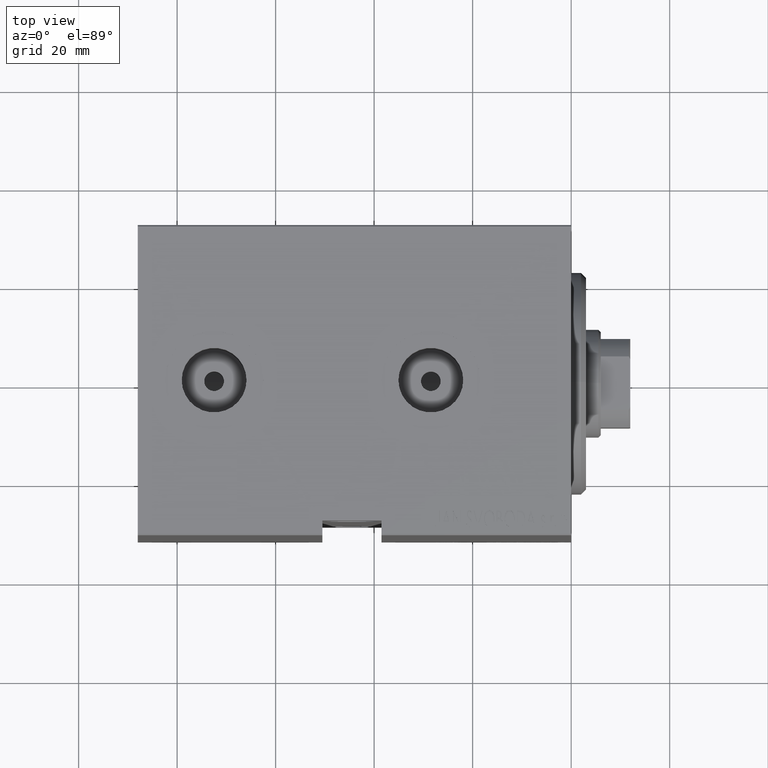
[diagram: clean part render]
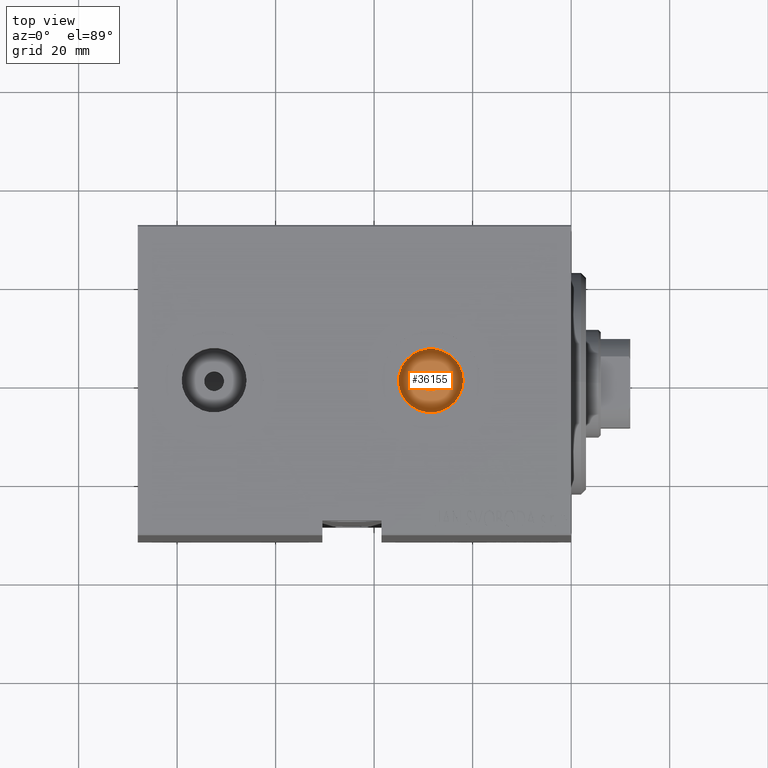
[diagram: same view with one face highlighted and labeled with its STEP entity id]
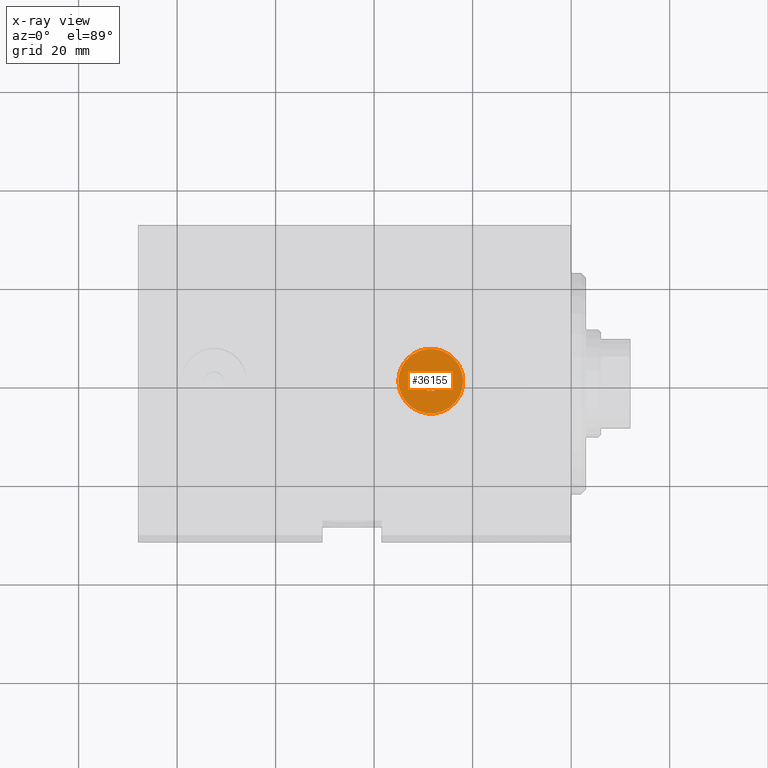
[diagram: x-ray of the same camera — body ghosted, the highlighted face saturated]
A machine part, top view. The second image highlights one B-rep face of the part: STEP entity #36155.
The next image is the same camera in x-ray: the body ghosted, the highlighted face saturated — about 0% of this face is hidden behind the body in this view.
In plain terms, the highlighted planar face has unit normal (0, 0, 1).
Its self-contained STEP definition (entity closure, byte-faithful):
#418 = DIRECTION ( 'NONE',  ( 1.000000000000000000, 0.000000000000000000, 0.000000000000000000 ) ) ;
#1216 = PLANE ( 'NONE',  #43626 ) ;
#1637 = DIRECTION ( 'NONE',  ( 0.000000000000000000, 0.000000000000000000, 1.000000000000000000 ) ) ;
#2998 = DIRECTION ( 'NONE',  ( 0.000000000000000000, 0.000000000000000000, 1.000000000000000000 ) ) ;
#3900 = AXIS2_PLACEMENT_3D ( 'NONE', #39280, #1637, #19471 ) ;
#4352 = DIRECTION ( 'NONE',  ( 1.000000000000000000, 0.000000000000000000, -0.000000000000000000 ) ) ;
#5939 = DIRECTION ( 'NONE',  ( 1.000000000000000000, 0.000000000000000000, 0.000000000000000000 ) ) ;
#6566 = CARTESIAN_POINT ( 'NONE',  ( 28.50000000000000000, -9.361999711620863359E-15, 29.23999999999999488 ) ) ;
#10252 = CARTESIAN_POINT ( 'NONE',  ( 28.50000000000000000, -9.361999711620863359E-15, 29.23999999999999488 ) ) ;
#10464 = DIRECTION ( 'NONE',  ( 0.000000000000000000, 0.000000000000000000, 1.000000000000000000 ) ) ;
#12119 = AXIS2_PLACEMENT_3D ( 'NONE', #10252, #10464, #418 ) ;
#12360 = EDGE_CURVE ( 'NONE', #13354, #33024, #34321, .T. ) ;
#12375 = VERTEX_POINT ( 'NONE', #25781 ) ;
#13112 = AXIS2_PLACEMENT_3D ( 'NONE', #6566, #2998, #19716 ) ;
#13319 = CARTESIAN_POINT ( 'NONE',  ( 35.07999999999999829, -9.361999711620863359E-15, 29.23999999999999488 ) ) ;
#13354 = VERTEX_POINT ( 'NONE', #19372 ) ;
#13689 = ORIENTED_EDGE ( 'NONE', *, *, #43975, .T. ) ;
#16270 = VERTEX_POINT ( 'NONE', #39701 ) ;
#17369 = CIRCLE ( 'NONE', #13112, 1.999999999999998224 ) ;
#18390 = DIRECTION ( 'NONE',  ( 0.000000000000000000, 0.000000000000000000, 1.000000000000000000 ) ) ;
#19372 = CARTESIAN_POINT ( 'NONE',  ( 21.92000000000000171, -8.556182117781905894E-15, 29.23999999999999488 ) ) ;
#19471 = DIRECTION ( 'NONE',  ( 1.000000000000000000, 0.000000000000000000, 0.000000000000000000 ) ) ;
#19716 = DIRECTION ( 'NONE',  ( 1.000000000000000000, 0.000000000000000000, 0.000000000000000000 ) ) ;
#21674 = CIRCLE ( 'NONE', #3900, 6.579999999999999183 ) ;
#22809 = CIRCLE ( 'NONE', #12119, 1.999999999999998224 ) ;
#23200 = EDGE_CURVE ( 'NONE', #16270, #12375, #22809, .T. ) ;
#25781 = CARTESIAN_POINT ( 'NONE',  ( 30.50000000000000000, -9.361999711620863359E-15, 29.23999999999999488 ) ) ;
#27870 = EDGE_LOOP ( 'NONE', ( #39640, #41149 ) ) ;
#28198 = FACE_OUTER_BOUND ( 'NONE', #43394, .T. ) ;
#31955 = FACE_BOUND ( 'NONE', #27870, .T. ) ;
#33024 = VERTEX_POINT ( 'NONE', #13319 ) ;
#33105 = DIRECTION ( 'NONE',  ( 0.000000000000000000, 0.000000000000000000, 1.000000000000000000 ) ) ;
#34321 = CIRCLE ( 'NONE', #43542, 6.579999999999999183 ) ;
#34499 = ORIENTED_EDGE ( 'NONE', *, *, #12360, .T. ) ;
#34850 = CARTESIAN_POINT ( 'NONE',  ( 28.50000000000000000, -9.361999711620863359E-15, 29.23999999999999488 ) ) ;
#36155 = ADVANCED_FACE ( 'NONE', ( #31955, #28198 ), #1216, .T. ) ;
#36210 = CARTESIAN_POINT ( 'NONE',  ( 28.50000000000000000, -9.361999711620863359E-15, 29.23999999999999488 ) ) ;
#37258 = EDGE_CURVE ( 'NONE', #12375, #16270, #17369, .T. ) ;
#39280 = CARTESIAN_POINT ( 'NONE',  ( 28.50000000000000000, -9.361999711620863359E-15, 29.23999999999999488 ) ) ;
#39640 = ORIENTED_EDGE ( 'NONE', *, *, #37258, .F. ) ;
#39701 = CARTESIAN_POINT ( 'NONE',  ( 26.50000000000000355, -9.117070351791393062E-15, 29.23999999999999488 ) ) ;
#41149 = ORIENTED_EDGE ( 'NONE', *, *, #23200, .F. ) ;
#43394 = EDGE_LOOP ( 'NONE', ( #13689, #34499 ) ) ;
#43542 = AXIS2_PLACEMENT_3D ( 'NONE', #36210, #33105, #5939 ) ;
#43626 = AXIS2_PLACEMENT_3D ( 'NONE', #34850, #18390, #4352 ) ;
#43975 = EDGE_CURVE ( 'NONE', #33024, #13354, #21674, .T. ) ;